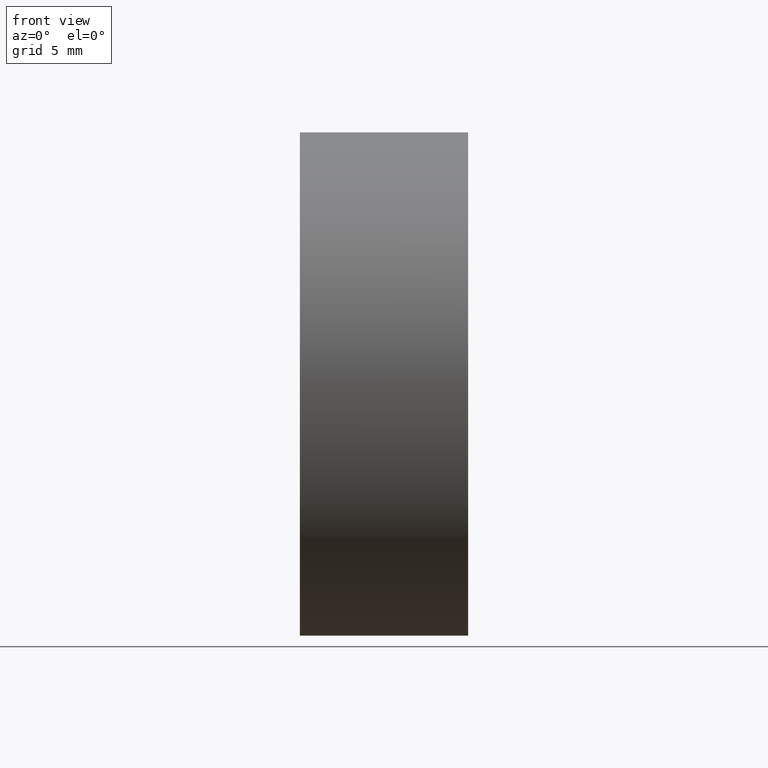
[diagram: clean part render]
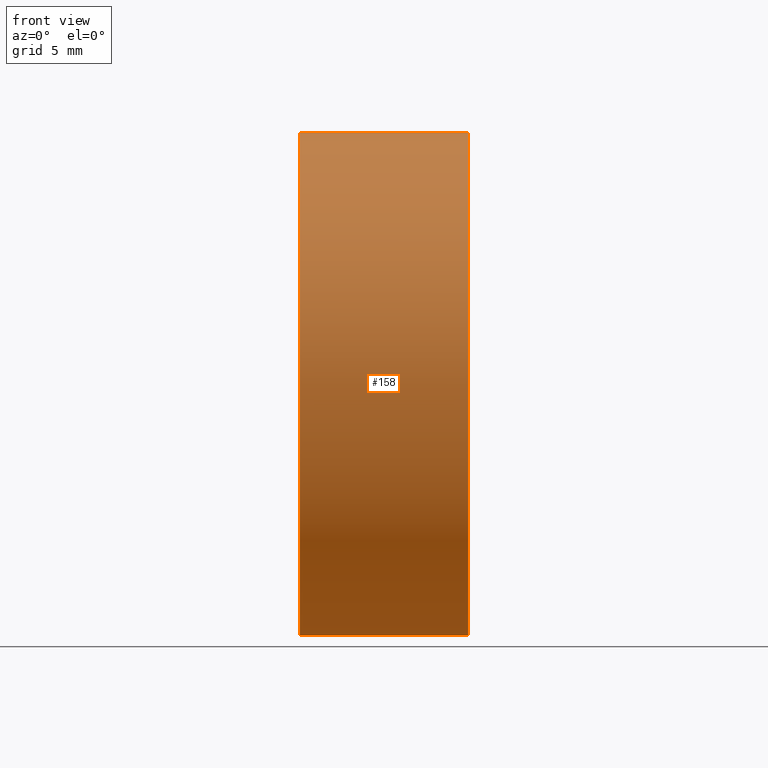
[diagram: same view with one face highlighted and labeled with its STEP entity id]
A machine part, front view. The second image highlights one B-rep face of the part: STEP entity #158.
In plain terms, the highlighted cylindrical surface (partial cylindrical patch) has radius 12.5 mm, axis along (-1, -0, -0).
Its self-contained STEP definition (entity closure, byte-faithful):
#2 = CARTESIAN_POINT ( 'NONE',  ( 64.23215453445439500, 20.11130143649370100, 0.0000000000000000000 ) ) ;
#9 = EDGE_CURVE ( 'NONE', #110, #179, #200, .T. ) ;
#28 = CARTESIAN_POINT ( 'NONE',  ( 64.23215453445439500, 32.61130143649369700, 12.49999999999999600 ) ) ;
#29 = DIRECTION ( 'NONE',  ( 0.0000000000000000000, 0.0000000000000000000, 1.000000000000000000 ) ) ;
#36 = VECTOR ( 'NONE', #54, 1000.000000000000000 ) ;
#48 = CARTESIAN_POINT ( 'NONE',  ( 53.06232639267102500, 32.61130143649369700, -12.49999999999999600 ) ) ;
#54 = DIRECTION ( 'NONE',  ( -1.000000000000000000, -0.0000000000000000000, -0.0000000000000000000 ) ) ;
#60 = DIRECTION ( 'NONE',  ( 0.0000000000000000000, 0.0000000000000000000, 1.000000000000000000 ) ) ;
#67 = AXIS2_PLACEMENT_3D ( 'NONE', #196, #108, #176 ) ;
#68 = ORIENTED_EDGE ( 'NONE', *, *, #82, .T. ) ;
#80 = CIRCLE ( 'NONE', #168, 12.49999999999999600 ) ;
#82 = EDGE_CURVE ( 'NONE', #153, #122, #194, .T. ) ;
#85 = ORIENTED_EDGE ( 'NONE', *, *, #173, .F. ) ;
#88 = CARTESIAN_POINT ( 'NONE',  ( 64.23215453445439500, 32.61130143649369700, -12.49999999999999600 ) ) ;
#90 = CARTESIAN_POINT ( 'NONE',  ( 55.87281597442936500, 32.61130143649369700, 12.49999999999999600 ) ) ;
#96 = LINE ( 'NONE', #126, #184 ) ;
#108 = DIRECTION ( 'NONE',  ( -1.000000000000000000, -0.0000000000000000000, -0.0000000000000000000 ) ) ;
#110 = VERTEX_POINT ( 'NONE', #209 ) ;
#115 = ORIENTED_EDGE ( 'NONE', *, *, #192, .T. ) ;
#119 = EDGE_LOOP ( 'NONE', ( #167, #115, #68, #120, #85, #221 ) ) ;
#120 = ORIENTED_EDGE ( 'NONE', *, *, #230, .T. ) ;
#121 = FACE_OUTER_BOUND ( 'NONE', #119, .T. ) ;
#122 = VERTEX_POINT ( 'NONE', #28 ) ;
#126 = CARTESIAN_POINT ( 'NONE',  ( 53.06232639267102500, 32.61130143649369700, 12.49999999999999600 ) ) ;
#130 = CARTESIAN_POINT ( 'NONE',  ( 64.23215453445439500, 32.61130143649369700, 0.0000000000000000000 ) ) ;
#131 = DIRECTION ( 'NONE',  ( -1.000000000000000000, -0.0000000000000000000, -0.0000000000000000000 ) ) ;
#133 = CYLINDRICAL_SURFACE ( 'NONE', #67, 12.49999999999999600 ) ;
#134 = CARTESIAN_POINT ( 'NONE',  ( 64.23215453445439500, 32.61130143649369700, 0.0000000000000000000 ) ) ;
#136 = AXIS2_PLACEMENT_3D ( 'NONE', #141, #150, #216 ) ;
#141 = CARTESIAN_POINT ( 'NONE',  ( 55.87281597442936500, 32.61130143649369700, 0.0000000000000000000 ) ) ;
#146 = DIRECTION ( 'NONE',  ( -1.000000000000000000, -0.0000000000000000000, -0.0000000000000000000 ) ) ;
#147 = EDGE_CURVE ( 'NONE', #162, #110, #163, .T. ) ;
#149 = CARTESIAN_POINT ( 'NONE',  ( 55.87281597442936500, 20.11130143649371100, -1.530808498934190300E-015 ) ) ;
#150 = DIRECTION ( 'NONE',  ( -1.000000000000000000, -0.0000000000000000000, -0.0000000000000000000 ) ) ;
#153 = VERTEX_POINT ( 'NONE', #2 ) ;
#156 = AXIS2_PLACEMENT_3D ( 'NONE', #170, #131, #225 ) ;
#158 = ADVANCED_FACE ( 'NONE', ( #121 ), #133, .T. ) ;
#159 = VERTEX_POINT ( 'NONE', #90 ) ;
#161 = DIRECTION ( 'NONE',  ( -1.000000000000000000, -0.0000000000000000000, -0.0000000000000000000 ) ) ;
#162 = VERTEX_POINT ( 'NONE', #88 ) ;
#163 = LINE ( 'NONE', #48, #36 ) ;
#167 = ORIENTED_EDGE ( 'NONE', *, *, #147, .F. ) ;
#168 = AXIS2_PLACEMENT_3D ( 'NONE', #130, #161, #60 ) ;
#170 = CARTESIAN_POINT ( 'NONE',  ( 55.87281597442936500, 32.61130143649369700, 0.0000000000000000000 ) ) ;
#171 = CIRCLE ( 'NONE', #136, 12.49999999999999600 ) ;
#173 = EDGE_CURVE ( 'NONE', #179, #159, #171, .T. ) ;
#176 = DIRECTION ( 'NONE',  ( 0.0000000000000000000, 0.0000000000000000000, 1.000000000000000000 ) ) ;
#179 = VERTEX_POINT ( 'NONE', #149 ) ;
#184 = VECTOR ( 'NONE', #146, 1000.000000000000000 ) ;
#191 = DIRECTION ( 'NONE',  ( -1.000000000000000000, -0.0000000000000000000, -0.0000000000000000000 ) ) ;
#192 = EDGE_CURVE ( 'NONE', #162, #153, #80, .T. ) ;
#194 = CIRCLE ( 'NONE', #212, 12.49999999999999600 ) ;
#196 = CARTESIAN_POINT ( 'NONE',  ( 53.06232639267102500, 32.61130143649369700, 0.0000000000000000000 ) ) ;
#200 = CIRCLE ( 'NONE', #156, 12.49999999999999600 ) ;
#209 = CARTESIAN_POINT ( 'NONE',  ( 55.87281597442936500, 32.61130143649369700, -12.49999999999999600 ) ) ;
#212 = AXIS2_PLACEMENT_3D ( 'NONE', #134, #191, #29 ) ;
#216 = DIRECTION ( 'NONE',  ( 0.0000000000000000000, 0.0000000000000000000, 1.000000000000000000 ) ) ;
#221 = ORIENTED_EDGE ( 'NONE', *, *, #9, .F. ) ;
#225 = DIRECTION ( 'NONE',  ( 0.0000000000000000000, 0.0000000000000000000, 1.000000000000000000 ) ) ;
#230 = EDGE_CURVE ( 'NONE', #122, #159, #96, .T. ) ;